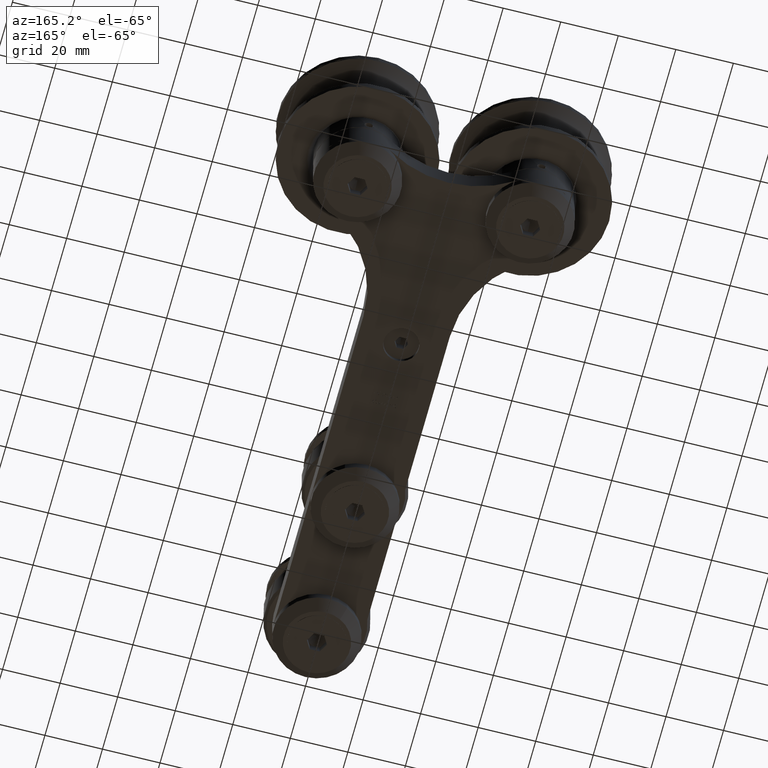
[diagram: clean part render]
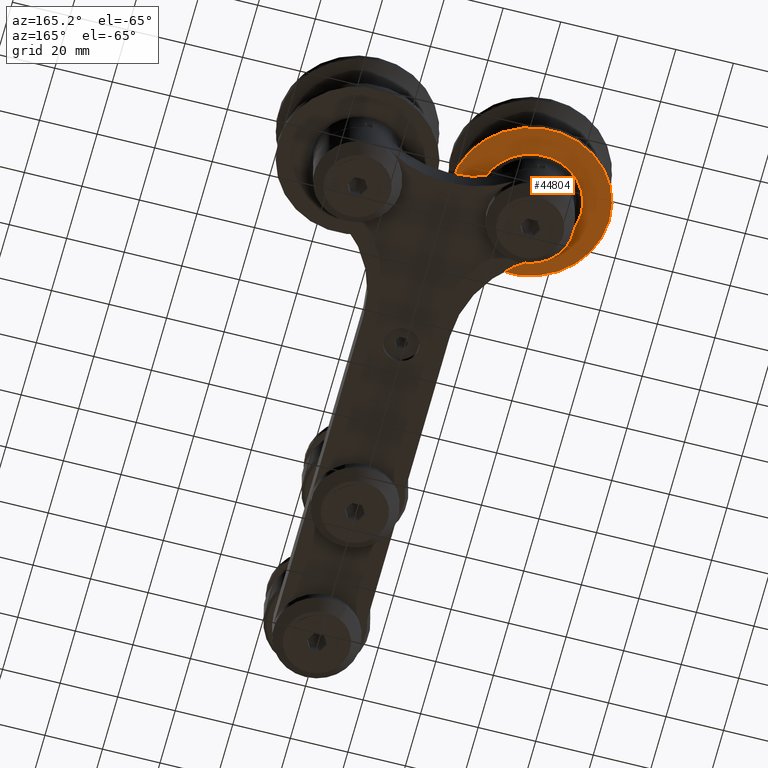
[diagram: same view with one face highlighted and labeled with its STEP entity id]
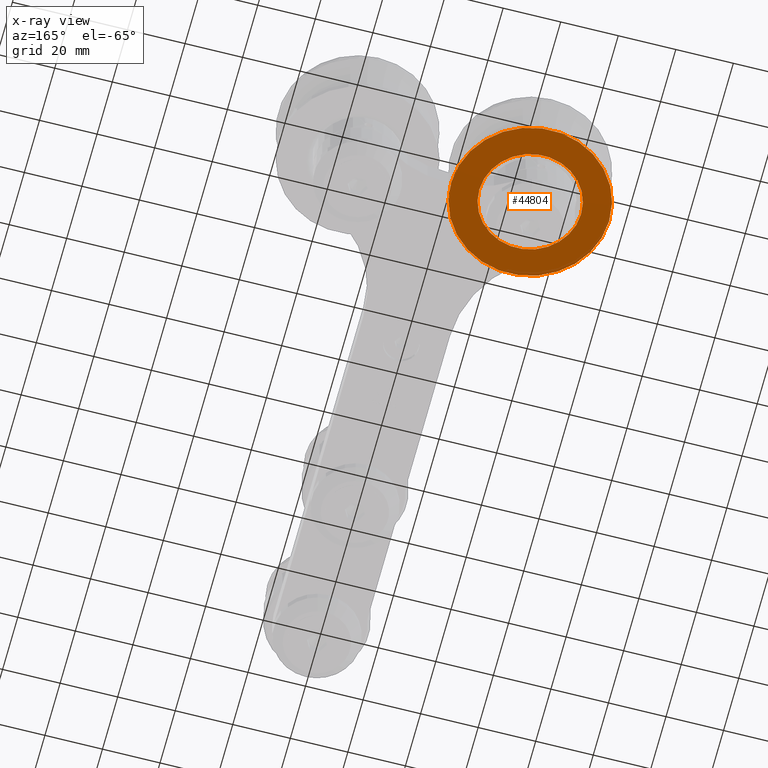
[diagram: x-ray of the same camera — body ghosted, the highlighted face saturated]
A machine part, auxiliary view. The second image highlights one B-rep face of the part: STEP entity #44804.
The next image is the same camera in x-ray: the body ghosted, the highlighted face saturated — about 0% of this face is hidden behind the body in this view.
In plain terms, the highlighted planar face has unit normal (0, 0, -1).
Its self-contained STEP definition (entity closure, byte-faithful):
#584 = VERTEX_POINT ( 'NONE', #32999 ) ;
#924 = CARTESIAN_POINT ( 'NONE',  ( 27.50000000000000000, 3.367778697655221300E-015, 0.0000000000000000000 ) ) ;
#1668 = CIRCLE ( 'NONE', #13891, 27.50000000000007500 ) ;
#2184 = CARTESIAN_POINT ( 'NONE',  ( 0.0000000000000000000, 17.70000000000002100, 0.0000000000000000000 ) ) ;
#5155 = DIRECTION ( 'NONE',  ( 0.0000000000000000000, 0.0000000000000000000, -1.000000000000000000 ) ) ;
#5964 = DIRECTION ( 'NONE',  ( 0.0000000000000000000, 0.0000000000000000000, -1.000000000000000000 ) ) ;
#7257 = AXIS2_PLACEMENT_3D ( 'NONE', #2184, #5155, #16212 ) ;
#9843 = CARTESIAN_POINT ( 'NONE',  ( 17.70000000000005600, 2.167624834490822100E-015, -3.252606517456513300E-015 ) ) ;
#10664 = EDGE_LOOP ( 'NONE', ( #35121, #39893 ) ) ;
#10955 = CARTESIAN_POINT ( 'NONE',  ( 0.0000000000000000000, 0.0000000000000000000, 0.0000000000000000000 ) ) ;
#11106 = DIRECTION ( 'NONE',  ( -1.000000000000000000, 0.0000000000000000000, 0.0000000000000000000 ) ) ;
#12060 = CARTESIAN_POINT ( 'NONE',  ( 0.0000000000000000000, 0.0000000000000000000, 0.0000000000000000000 ) ) ;
#12603 = AXIS2_PLACEMENT_3D ( 'NONE', #45083, #5964, #34593 ) ;
#13665 = EDGE_CURVE ( 'NONE', #25562, #20086, #35576, .T. ) ;
#13891 = AXIS2_PLACEMENT_3D ( 'NONE', #42627, #17433, #28218 ) ;
#15123 = AXIS2_PLACEMENT_3D ( 'NONE', #12060, #19233, #36920 ) ;
#16212 = DIRECTION ( 'NONE',  ( -1.000000000000000000, 0.0000000000000000000, 0.0000000000000000000 ) ) ;
#17433 = DIRECTION ( 'NONE',  ( 0.0000000000000000000, 0.0000000000000000000, -1.000000000000000000 ) ) ;
#19233 = DIRECTION ( 'NONE',  ( 0.0000000000000000000, 0.0000000000000000000, -1.000000000000000000 ) ) ;
#19640 = EDGE_CURVE ( 'NONE', #584, #21894, #1668, .T. ) ;
#20086 = VERTEX_POINT ( 'NONE', #9843 ) ;
#20372 = FACE_OUTER_BOUND ( 'NONE', #10664, .T. ) ;
#21894 = VERTEX_POINT ( 'NONE', #924 ) ;
#23337 = EDGE_CURVE ( 'NONE', #21894, #584, #42388, .T. ) ;
#23514 = AXIS2_PLACEMENT_3D ( 'NONE', #10955, #39674, #11106 ) ;
#24458 = EDGE_LOOP ( 'NONE', ( #36850, #43271 ) ) ;
#25562 = VERTEX_POINT ( 'NONE', #43502 ) ;
#27160 = PLANE ( 'NONE',  #7257 ) ;
#27633 = FACE_BOUND ( 'NONE', #24458, .T. ) ;
#28218 = DIRECTION ( 'NONE',  ( -1.000000000000000000, 0.0000000000000000000, 0.0000000000000000000 ) ) ;
#32999 = CARTESIAN_POINT ( 'NONE',  ( -27.50000000000007500, 0.0000000000000000000, 0.0000000000000000000 ) ) ;
#34593 = DIRECTION ( 'NONE',  ( -1.000000000000000000, 0.0000000000000000000, 0.0000000000000000000 ) ) ;
#35121 = ORIENTED_EDGE ( 'NONE', *, *, #19640, .T. ) ;
#35576 = CIRCLE ( 'NONE', #12603, 17.70000000000006700 ) ;
#35629 = CIRCLE ( 'NONE', #15123, 17.70000000000006700 ) ;
#36850 = ORIENTED_EDGE ( 'NONE', *, *, #13665, .F. ) ;
#36920 = DIRECTION ( 'NONE',  ( -1.000000000000000000, 0.0000000000000000000, 0.0000000000000000000 ) ) ;
#39674 = DIRECTION ( 'NONE',  ( 0.0000000000000000000, 0.0000000000000000000, -1.000000000000000000 ) ) ;
#39893 = ORIENTED_EDGE ( 'NONE', *, *, #23337, .T. ) ;
#41111 = EDGE_CURVE ( 'NONE', #20086, #25562, #35629, .T. ) ;
#42388 = CIRCLE ( 'NONE', #23514, 27.50000000000007500 ) ;
#42627 = CARTESIAN_POINT ( 'NONE',  ( 0.0000000000000000000, 0.0000000000000000000, 0.0000000000000000000 ) ) ;
#43271 = ORIENTED_EDGE ( 'NONE', *, *, #41111, .F. ) ;
#43502 = CARTESIAN_POINT ( 'NONE',  ( -17.70000000000005600, 0.0000000000000000000, 0.0000000000000000000 ) ) ;
#44804 = ADVANCED_FACE ( 'NONE', ( #20372, #27633 ), #27160, .T. ) ;
#45083 = CARTESIAN_POINT ( 'NONE',  ( 0.0000000000000000000, 0.0000000000000000000, 0.0000000000000000000 ) ) ;